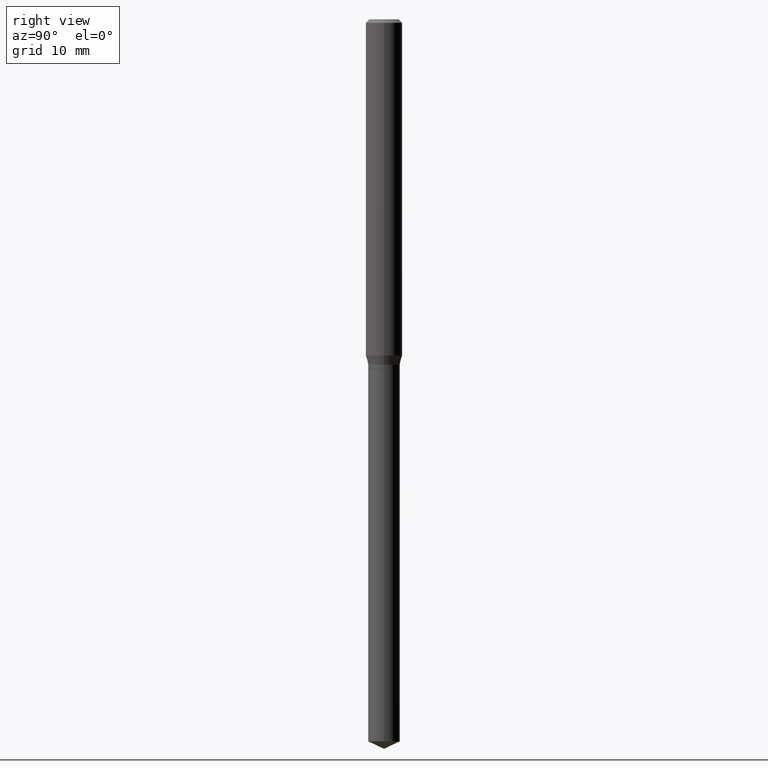
[diagram: clean part render]
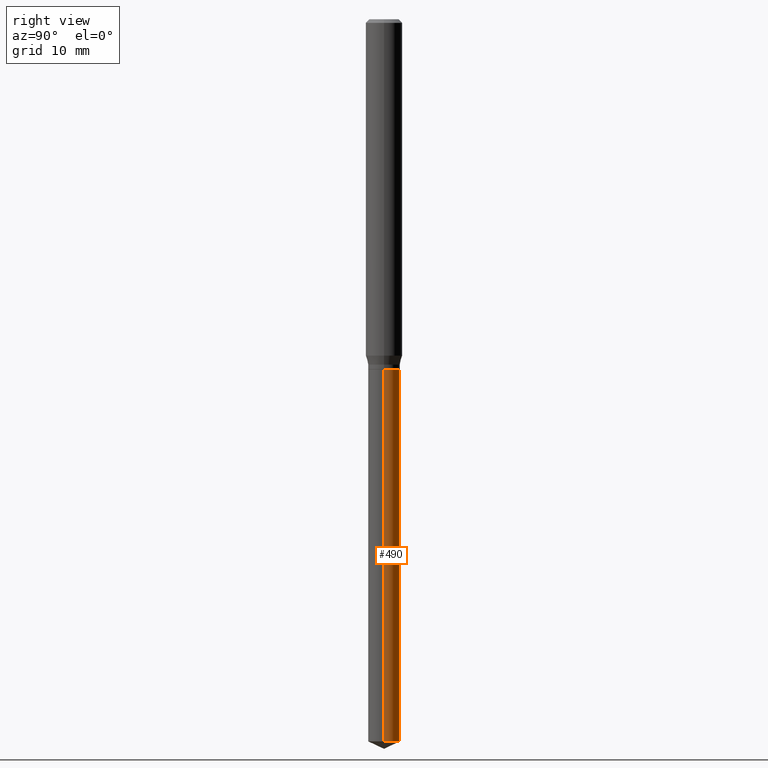
[diagram: same view with one face highlighted and labeled with its STEP entity id]
A machine part, right view. The second image highlights one B-rep face of the part: STEP entity #490.
In plain terms, the highlighted cylindrical surface (edge-blend (fillet) strip) has radius 1.3005 mm, axis along (-0, 0, 1).
Its self-contained STEP definition (entity closure, byte-faithful):
#13 = AXIS2_PLACEMENT_3D ( 'NONE', #439, #17, #187 ) ;
#16 = ORIENTED_EDGE ( 'NONE', *, *, #367, .F. ) ;
#17 = DIRECTION ( 'NONE',  ( -2.445468806185136597E-29, 3.491481338843145583E-15, 1.000000000000000000 ) ) ;
#22 = DIRECTION ( 'NONE',  ( -2.445468806185136877E-29, 3.491481338843145188E-15, 1.000000000000000000 ) ) ;
#25 = CARTESIAN_POINT ( 'NONE',  ( 0.05120000000000002327, -8.521745957998495027E-15, -2.338325047902463982 ) ) ;
#30 = CARTESIAN_POINT ( 'NONE',  ( -0.05120000000000000939, -5.697806598798429954E-15, -1.133900000000000352 ) ) ;
#63 = DIRECTION ( 'NONE',  ( -2.445468806185136597E-29, 3.491481338843145583E-15, 1.000000000000000000 ) ) ;
#67 = CYLINDRICAL_SURFACE ( 'NONE', #418, 0.05120000000000000939 ) ;
#71 = CARTESIAN_POINT ( 'NONE',  ( -0.05120000000000002327, -7.800420388191787803E-15, -2.338325047902463982 ) ) ;
#108 = DIRECTION ( 'NONE',  ( -2.445468806185136597E-29, 3.491481338843145583E-15, 1.000000000000000000 ) ) ;
#114 = LINE ( 'NONE', #307, #244 ) ;
#172 = ORIENTED_EDGE ( 'NONE', *, *, #355, .T. ) ;
#187 = DIRECTION ( 'NONE',  ( 1.000000000000000000, -6.982962677686263555E-15, 0.000000000000000000 ) ) ;
#189 = EDGE_LOOP ( 'NONE', ( #172, #456, #16, #464 ) ) ;
#190 = DIRECTION ( 'NONE',  ( 1.000000000000000000, -6.982962677686263555E-15, 0.000000000000000000 ) ) ;
#244 = VECTOR ( 'NONE', #450, 39.37007874015748143 ) ;
#265 = VERTEX_POINT ( 'NONE', #25 ) ;
#267 = DIRECTION ( 'NONE',  ( 1.000000000000000000, -6.982962677686263555E-15, 0.000000000000000000 ) ) ;
#279 = CARTESIAN_POINT ( 'NONE',  ( 0.05120000000000000939, -4.316518379211780118E-15, -1.133900000000000352 ) ) ;
#298 = CARTESIAN_POINT ( 'NONE',  ( 2.772917079333326950E-29, -3.958990690114243565E-15, -1.133900000000000352 ) ) ;
#299 = EDGE_CURVE ( 'NONE', #477, #374, #114, .T. ) ;
#302 = AXIS2_PLACEMENT_3D ( 'NONE', #298, #108, #190 ) ;
#304 = LINE ( 'NONE', #478, #379 ) ;
#307 = CARTESIAN_POINT ( 'NONE',  ( -0.05120000000000000939, -3.595192809405072105E-15, -1.133900000000000130 ) ) ;
#355 = EDGE_CURVE ( 'NONE', #265, #477, #442, .T. ) ;
#367 = EDGE_CURVE ( 'NONE', #441, #374, #435, .T. ) ;
#368 = CARTESIAN_POINT ( 'NONE',  ( 2.772917079333326390E-29, -3.958990690114243565E-15, -1.133900000000000130 ) ) ;
#374 = VERTEX_POINT ( 'NONE', #30 ) ;
#379 = VECTOR ( 'NONE', #22, 39.37007874015748143 ) ;
#418 = AXIS2_PLACEMENT_3D ( 'NONE', #368, #63, #267 ) ;
#435 = CIRCLE ( 'NONE', #302, 0.05120000000000000939 ) ;
#439 = CARTESIAN_POINT ( 'NONE',  ( 5.718300963366841396E-29, -8.164218268900958475E-15, -2.338325047902463982 ) ) ;
#441 = VERTEX_POINT ( 'NONE', #279 ) ;
#442 = CIRCLE ( 'NONE', #13, 0.05120000000000000939 ) ;
#450 = DIRECTION ( 'NONE',  ( -2.445468806185136877E-29, 3.491481338843145188E-15, 1.000000000000000000 ) ) ;
#456 = ORIENTED_EDGE ( 'NONE', *, *, #299, .T. ) ;
#464 = ORIENTED_EDGE ( 'NONE', *, *, #475, .F. ) ;
#475 = EDGE_CURVE ( 'NONE', #265, #441, #304, .T. ) ;
#477 = VERTEX_POINT ( 'NONE', #71 ) ;
#478 = CARTESIAN_POINT ( 'NONE',  ( 0.05120000000000000939, -4.316518379211780118E-15, -1.133900000000000130 ) ) ;
#481 = FACE_OUTER_BOUND ( 'NONE', #189, .T. ) ;
#490 = ADVANCED_FACE ( 'NONE', ( #481 ), #67, .T. ) ;